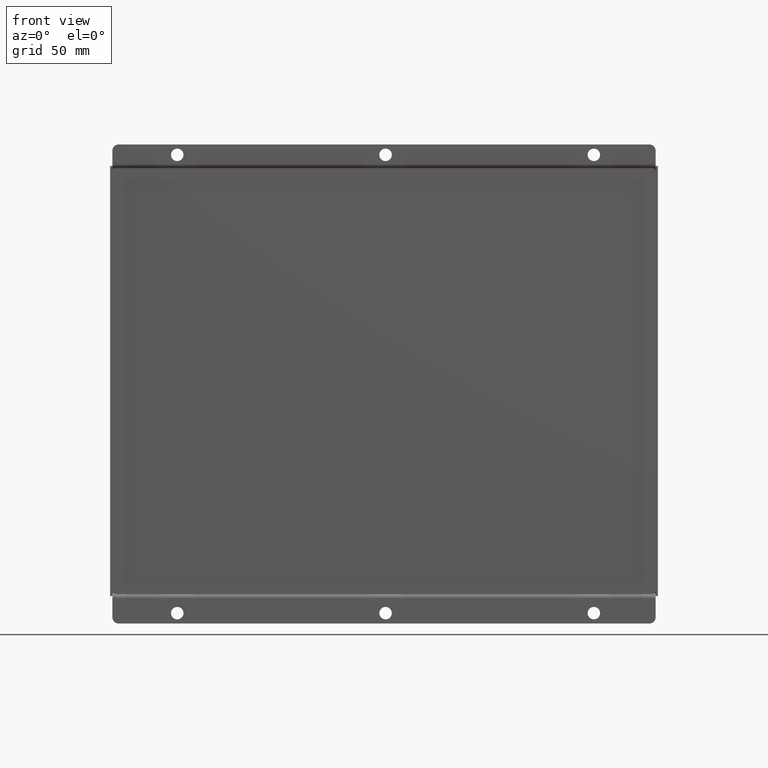
[diagram: clean part render]
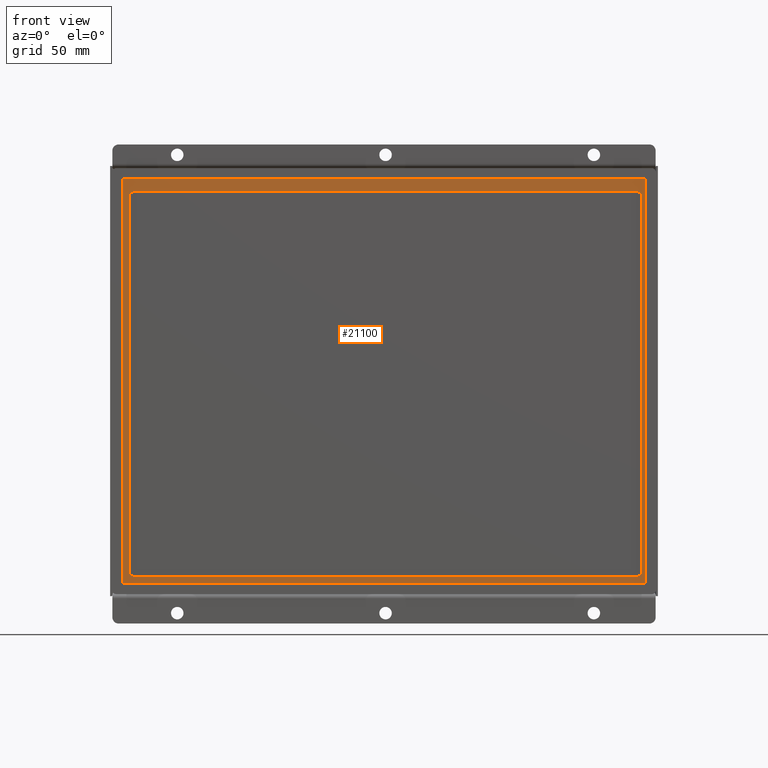
[diagram: same view with one face highlighted and labeled with its STEP entity id]
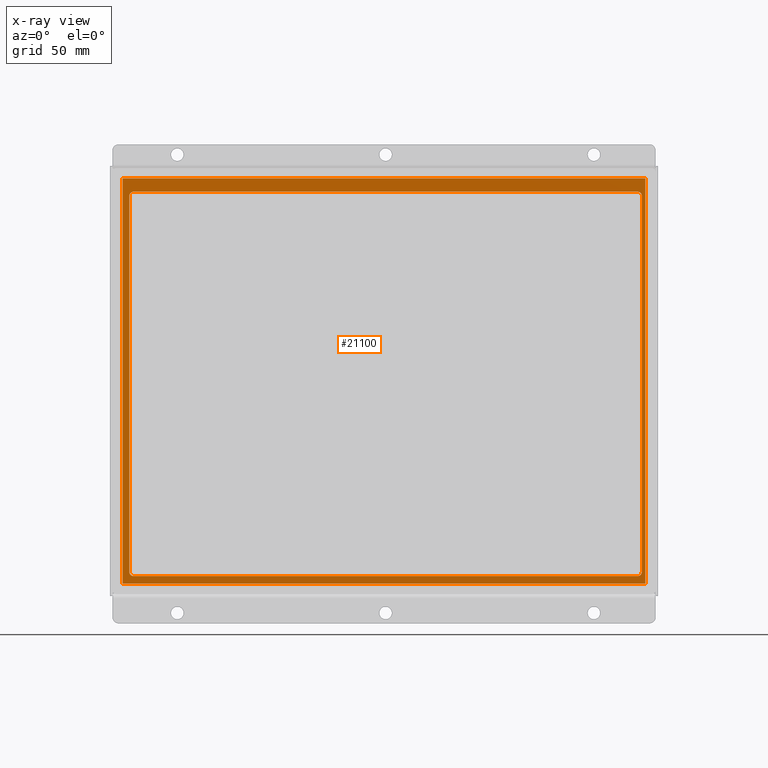
[diagram: x-ray of the same camera — body ghosted, the highlighted face saturated]
A machine part, front view. The second image highlights one B-rep face of the part: STEP entity #21100.
The next image is the same camera in x-ray: the body ghosted, the highlighted face saturated — about 0% of this face is hidden behind the body in this view.
In plain terms, the highlighted planar face has unit normal (0, -1, 0).
Its self-contained STEP definition (entity closure, byte-faithful):
#946=FACE_BOUND('',#7477,.T.);
#1495=PLANE('',#23017);
#2796=LINE('',#35751,#4551);
#2797=LINE('',#35753,#4552);
#2798=LINE('',#35755,#4553);
#2799=LINE('',#35756,#4554);
#2800=LINE('',#35761,#4555);
#2801=LINE('',#35765,#4556);
#2802=LINE('',#35769,#4557);
#2803=LINE('',#35772,#4558);
#4551=VECTOR('',#27115,10.);
#4552=VECTOR('',#27116,10.);
#4553=VECTOR('',#27117,10.);
#4554=VECTOR('',#27118,10.);
#4555=VECTOR('',#27121,10.);
#4556=VECTOR('',#27124,10.);
#4557=VECTOR('',#27127,10.);
#4558=VECTOR('',#27130,10.);
#6180=FACE_OUTER_BOUND('',#7476,.T.);
#7476=EDGE_LOOP('',(#17459,#17460,#17461,#17462));
#7477=EDGE_LOOP('',(#17463,#17464,#17465,#17466,#17467,#17468,#17469,#17470));
#8540=CIRCLE('',#23018,1.99999999999999);
#8541=CIRCLE('',#23019,1.99999999999999);
#8542=CIRCLE('',#23020,2.00000000000003);
#8543=CIRCLE('',#23021,1.99999999999999);
#10174=VERTEX_POINT('',#35749);
#10175=VERTEX_POINT('',#35750);
#10176=VERTEX_POINT('',#35752);
#10177=VERTEX_POINT('',#35754);
#10178=VERTEX_POINT('',#35757);
#10179=VERTEX_POINT('',#35758);
#10180=VERTEX_POINT('',#35760);
#10181=VERTEX_POINT('',#35762);
#10182=VERTEX_POINT('',#35764);
#10183=VERTEX_POINT('',#35766);
#10184=VERTEX_POINT('',#35768);
#10185=VERTEX_POINT('',#35770);
#12736=EDGE_CURVE('',#10174,#10175,#2796,.T.);
#12737=EDGE_CURVE('',#10175,#10176,#2797,.T.);
#12738=EDGE_CURVE('',#10176,#10177,#2798,.T.);
#12739=EDGE_CURVE('',#10177,#10174,#2799,.T.);
#12740=EDGE_CURVE('',#10178,#10179,#8540,.T.);
#12741=EDGE_CURVE('',#10180,#10178,#2800,.T.);
#12742=EDGE_CURVE('',#10181,#10180,#8541,.T.);
#12743=EDGE_CURVE('',#10182,#10181,#2801,.T.);
#12744=EDGE_CURVE('',#10183,#10182,#8542,.T.);
#12745=EDGE_CURVE('',#10184,#10183,#2802,.T.);
#12746=EDGE_CURVE('',#10185,#10184,#8543,.T.);
#12747=EDGE_CURVE('',#10179,#10185,#2803,.T.);
#17459=ORIENTED_EDGE('',*,*,#12736,.T.);
#17460=ORIENTED_EDGE('',*,*,#12737,.T.);
#17461=ORIENTED_EDGE('',*,*,#12738,.T.);
#17462=ORIENTED_EDGE('',*,*,#12739,.T.);
#17463=ORIENTED_EDGE('',*,*,#12740,.F.);
#17464=ORIENTED_EDGE('',*,*,#12741,.F.);
#17465=ORIENTED_EDGE('',*,*,#12742,.F.);
#17466=ORIENTED_EDGE('',*,*,#12743,.F.);
#17467=ORIENTED_EDGE('',*,*,#12744,.F.);
#17468=ORIENTED_EDGE('',*,*,#12745,.F.);
#17469=ORIENTED_EDGE('',*,*,#12746,.F.);
#17470=ORIENTED_EDGE('',*,*,#12747,.F.);
#21100=ADVANCED_FACE('',(#6180,#946),#1495,.T.);
#23017=AXIS2_PLACEMENT_3D('',#35748,#27113,#27114);
#23018=AXIS2_PLACEMENT_3D('',#35759,#27119,#27120);
#23019=AXIS2_PLACEMENT_3D('',#35763,#27122,#27123);
#23020=AXIS2_PLACEMENT_3D('',#35767,#27125,#27126);
#23021=AXIS2_PLACEMENT_3D('',#35771,#27128,#27129);
#27113=DIRECTION('center_axis',(0.,0.,1.));
#27114=DIRECTION('ref_axis',(1.,0.,0.));
#27115=DIRECTION('',(1.,1.36119298038333E-16,0.));
#27116=DIRECTION('',(-1.82658800966607E-16,1.,0.));
#27117=DIRECTION('',(-1.,-2.041789470575E-16,0.));
#27118=DIRECTION('',(1.82658800966607E-16,-1.,0.));
#27119=DIRECTION('center_axis',(0.,0.,1.));
#27120=DIRECTION('ref_axis',(-1.,0.,0.));
#27121=DIRECTION('',(-4.92065606482064E-16,1.,0.));
#27122=DIRECTION('center_axis',(0.,0.,1.));
#27123=DIRECTION('ref_axis',(0.,1.,0.));
#27124=DIRECTION('',(1.,1.46806350363657E-16,0.));
#27125=DIRECTION('center_axis',(0.,0.,1.));
#27126=DIRECTION('ref_axis',(1.,0.,0.));
#27127=DIRECTION('',(1.96826242592826E-16,-1.,0.));
#27128=DIRECTION('center_axis',(0.,0.,1.));
#27129=DIRECTION('ref_axis',(0.,-1.,0.));
#27130=DIRECTION('',(-1.,-2.20209525545486E-16,0.));
#35748=CARTESIAN_POINT('Origin',(0.,-1.77635683940025E-14,8.9));
#35749=CARTESIAN_POINT('',(-125.5,-97.2500000000001,8.9));
#35750=CARTESIAN_POINT('',(125.5,-97.25,8.9));
#35751=CARTESIAN_POINT('',(65.25,-97.2500000000001,8.9));
#35752=CARTESIAN_POINT('',(125.5,97.25,8.9));
#35753=CARTESIAN_POINT('',(125.5,48.625,8.9));
#35754=CARTESIAN_POINT('',(-125.5,97.25,8.9));
#35755=CARTESIAN_POINT('',(-65.25,97.25,8.9));
#35756=CARTESIAN_POINT('',(-125.5,-48.625,8.9));
#35757=CARTESIAN_POINT('',(123.75,88.85,8.9));
#35758=CARTESIAN_POINT('',(121.75,90.85,8.9));
#35759=CARTESIAN_POINT('Origin',(121.75,88.85,8.9));
#35760=CARTESIAN_POINT('',(123.75,-91.65,8.9));
#35761=CARTESIAN_POINT('',(123.75,-45.825,8.9));
#35762=CARTESIAN_POINT('',(121.75,-93.65,8.9));
#35763=CARTESIAN_POINT('Origin',(121.75,-91.65,8.9));
#35764=CARTESIAN_POINT('',(-120.25,-93.6500000000001,8.9));
#35765=CARTESIAN_POINT('',(-60.125,-93.6500000000001,8.9));
#35766=CARTESIAN_POINT('',(-122.25,-91.6500000000001,8.9));
#35767=CARTESIAN_POINT('Origin',(-120.25,-91.6500000000001,8.9));
#35768=CARTESIAN_POINT('',(-122.25,88.8499999999999,8.9));
#35769=CARTESIAN_POINT('',(-122.25,44.425,8.9));
#35770=CARTESIAN_POINT('',(-120.25,90.8499999999999,8.9));
#35771=CARTESIAN_POINT('Origin',(-120.25,88.8499999999999,8.9));
#35772=CARTESIAN_POINT('',(60.875,90.85,8.9));